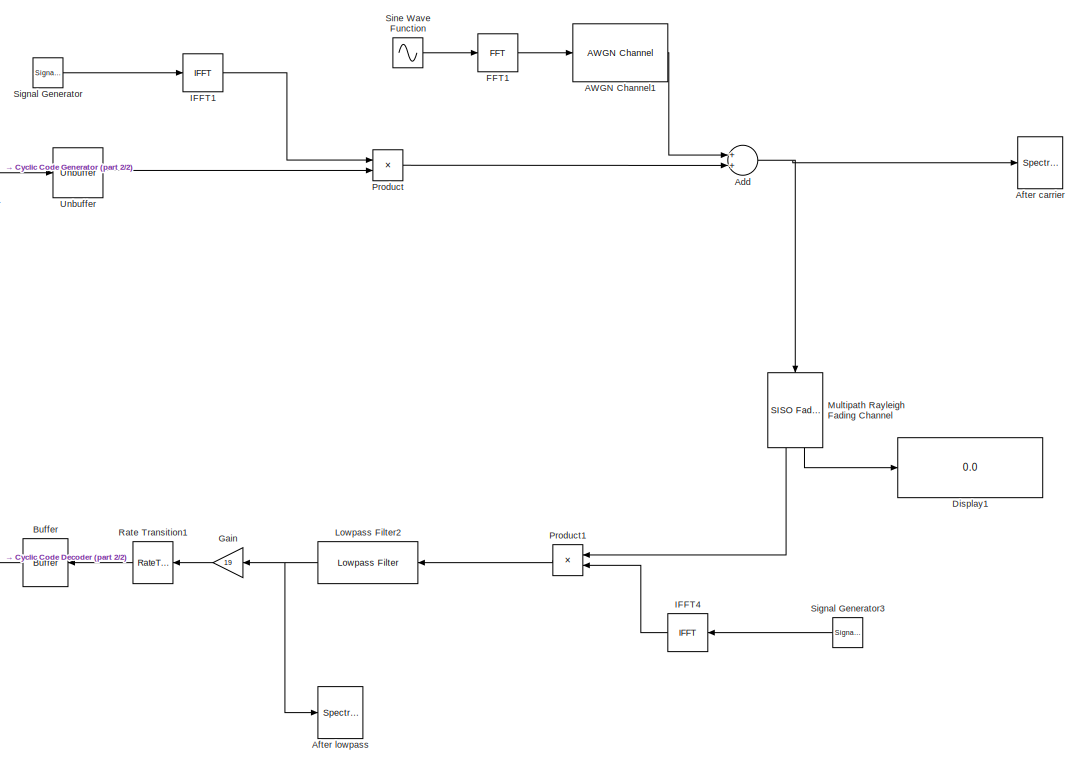
[diagram: root canvas - part 1/2, right side, full height]
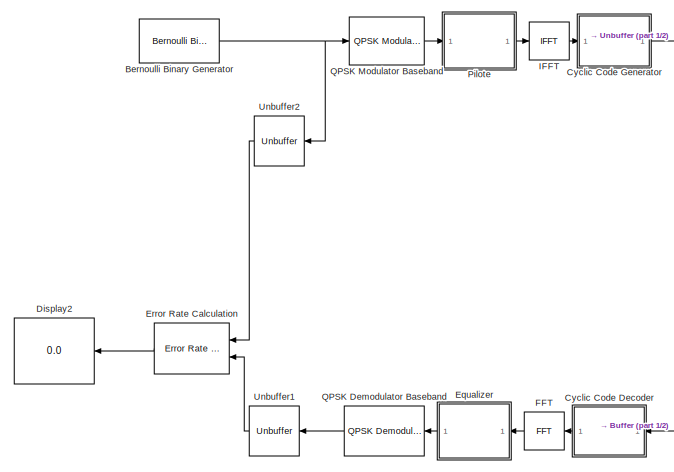
[diagram: root canvas - part 2/2, middle left region]
MODEL slx_56d662762907
KIND model
CONFIG AbsTol = auto
CONFIG EnableMultiTasking = off
CONFIG FixedStep = 3.1189083820662764e-10
CONFIG MaxStep = auto
CONFIG MinStep = auto
CONFIG RelTol = 1e-3
CONFIG SampleTimeConstraint = Unconstrained
CONFIG Solver = FixedStepDiscrete
CONFIG SolverName = FixedStepDiscrete
CONFIG StartTime = 0.0
CONFIG StopTime = inf
BLOCK [Reference] AWGN Channel1  REF=commchan3/AWGN
Channel
  Ports = [1, 1]
  SourceBlock = commchan3/AWGN\nChannel
  SourceProductBaseCode = CM
  SourceProductName = Communications System Toolbox
  SourceType = AWGN Channel
  UserDataPersistent = on
BLOCK [Sum] Add
  InputSameDT = off
  OutDataTypeStr = Inherit: Inherit via internal rule
  Ports = [2, 1]
  SaturateOnIntegerOverflow = off
BLOCK [SpectrumAnalyzer] After carrier 
  Ports = [1]
  ScopeSpecificationString = spbscopes.SpectrumAnalyzerBlockCfg('CurrentConfiguration', extmgr.ConfigurationSet(extmgr.Configuration('Core','General UI',true),extmgr.Configuration('Core','Source UI',true),extmgr.Configuration('Sources','WiredSimulink',true),extmgr.Configuration('Visuals','Spectrum',true,'AxesProperties',struct('Color',{[0 0 0],[0 0 0]},'XColor',{[0.686274509803922 0.686274509803922 0.686274509803922],[0.68627...<+2019ch>
BLOCK [SpectrumAnalyzer] After lowpass
  Ports = [1]
  ScopeSpecificationString = spbscopes.SpectrumAnalyzerBlockCfg('CurrentConfiguration', extmgr.ConfigurationSet(extmgr.Configuration('Core','General UI',true),extmgr.Configuration('Core','Source UI',true),extmgr.Configuration('Sources','WiredSimulink',true),extmgr.Configuration('Visuals','Spectrum',true,'AxesProperties',struct('Color',{[0 0 0],[0 0 0]},'XColor',{[0.686274509803922 0.686274509803922 0.686274509803922],[0.68627...<+2018ch>
BLOCK [Reference] Bernoulli Binary Generator  REF=commrandsrc3/Bernoulli Binary
Generator
  Ports = [0, 1]
  SourceBlock = commrandsrc3/Bernoulli Binary\nGenerator
  SourceProductBaseCode = CM
  SourceProductName = Communications Toolbox
  SourceType = Bernoulli Binary Generator
BLOCK [Buffer] Buffer
  N = N_total+N_cyclic
  OutputFrames = off
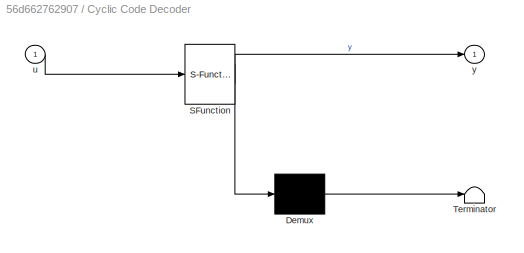
BLOCK [SubSystem] Cyclic Code Decoder
  ErrorFcn = Stateflow.Translate.translate
  PermitHierarchicalResolution = ExplicitOnly
  Ports = [1, 1]
  RequestExecContextInheritance = off
  SFBlockType = MATLAB Function
  TreatAsAtomicUnit = on
BLOCK [Demux] Cyclic Code Decoder/ Demux 
  Outputs = 1
  Ports = [1, 1]
BLOCK [S-Function] Cyclic Code Decoder/ SFunction 
  EnableBusSupport = on
  FunctionName = sf_sfun
  Parameters = N_cyclic
  PortCounts = [1 2]
  Ports = [1, 2]
  SFcnIsStateOwnerBlock = off
  SFunctionDeploymentMode = off
  Tag = Stateflow S-Function project 1
BLOCK [Terminator] Cyclic Code Decoder/ Terminator 
BLOCK [Inport] Cyclic Code Decoder/u
  IconDisplay = Port number
BLOCK [Outport] Cyclic Code Decoder/y
  IconDisplay = Port number
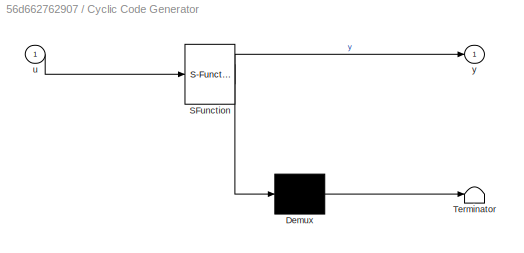
BLOCK [SubSystem] Cyclic Code Generator
  ErrorFcn = Stateflow.Translate.translate
  PermitHierarchicalResolution = ExplicitOnly
  Ports = [1, 1]
  RequestExecContextInheritance = off
  SFBlockType = MATLAB Function
  TreatAsAtomicUnit = on
BLOCK [Demux] Cyclic Code Generator/ Demux 
  Outputs = 1
  Ports = [1, 1]
BLOCK [S-Function] Cyclic Code Generator/ SFunction 
  EnableBusSupport = on
  FunctionName = sf_sfun
  Parameters = N_cyclic,N_total
  PortCounts = [1 2]
  Ports = [1, 2]
  SFcnIsStateOwnerBlock = off
  SFunctionDeploymentMode = off
  Tag = Stateflow S-Function project 3
BLOCK [Terminator] Cyclic Code Generator/ Terminator 
BLOCK [Inport] Cyclic Code Generator/u
  IconDisplay = Port number
BLOCK [Outport] Cyclic Code Generator/y
  IconDisplay = Port number
BLOCK [Display] Display1
  Decimation = 1
  Ports = [1]
BLOCK [Display] Display2
  Decimation = 1
  Ports = [1]
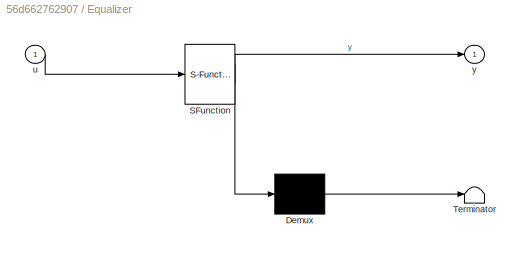
BLOCK [SubSystem] Equalizer
  ErrorFcn = Stateflow.Translate.translate
  PermitHierarchicalResolution = ExplicitOnly
  Ports = [1, 1]
  RequestExecContextInheritance = off
  SFBlockType = MATLAB Function
  TreatAsAtomicUnit = on
BLOCK [Demux] Equalizer/ Demux 
  Outputs = 1
  Ports = [1, 1]
BLOCK [S-Function] Equalizer/ SFunction 
  EnableBusSupport = on
  FunctionName = sf_sfun
  Parameters = N,N_total,espacement_pilote
  PortCounts = [1 2]
  Ports = [1, 2]
  SFcnIsStateOwnerBlock = off
  SFunctionDeploymentMode = off
  Tag = Stateflow S-Function project 4
BLOCK [Terminator] Equalizer/ Terminator 
BLOCK [Inport] Equalizer/u
  IconDisplay = Port number
BLOCK [Outport] Equalizer/y
  IconDisplay = Port number
BLOCK [Reference] Error Rate Calculation  REF=commsink2/Error Rate
Calculation
  Ports = [2, 1]
  SourceBlock = commsink2/Error Rate\nCalculation
  SourceProductBaseCode = CM
  SourceProductName = Communications Toolbox
  SourceType = Error Rate Calculation
BLOCK [Reference] FFT  REF=dspxfrm3/FFT
  Ports = [1, 1]
  SourceBlock = dspxfrm3/FFT
  SourceProductBaseCode = DS
  SourceProductName = DSP System Toolbox
  SourceType = FFT
BLOCK [Reference] FFT1  REF=dspxfrm3/FFT
  Ports = [1, 1]
  SourceBlock = dspxfrm3/FFT
  SourceProductBaseCode = DS
  SourceProductName = DSP System Toolbox
  SourceType = FFT
BLOCK [Gain] Gain
  Gain = 19
  OutDataTypeStr = Inherit: Inherit via internal rule
  ParamDataTypeStr = Inherit: Inherit via internal rule
  SaturateOnIntegerOverflow = off
BLOCK [Reference] IFFT  REF=dspxfrm3/IFFT
  Ports = [1, 1]
  SourceBlock = dspxfrm3/IFFT
  SourceProductBaseCode = DS
  SourceProductName = DSP System Toolbox
  SourceType = IFFT
BLOCK [Reference] IFFT1  REF=dspxfrm3/IFFT
  Ports = [1, 1]
  SourceBlock = dspxfrm3/IFFT
  SourceProductBaseCode = DS
  SourceProductName = DSP System Toolbox
  SourceType = IFFT
BLOCK [Reference] IFFT4  REF=dspxfrm3/IFFT
  Ports = [1, 1]
  SourceBlock = dspxfrm3/IFFT
  SourceProductBaseCode = DS
  SourceProductName = DSP System Toolbox
  SourceType = IFFT
BLOCK [Reference] Lowpass Filter2  REF=dspfdesign/Lowpass Filter
  Ports = [1, 1]
  SourceBlock = dspfdesign/Lowpass Filter
  SourceProductBaseCode = DS
  SourceProductName = DSP System Toolbox
  SourceType = dsp.LowpassFilter
BLOCK [Reference] Multipath Rayleigh Fading Channel  REF=commchan3/SISO Fading Channel
  Ports = [1, 2]
  SourceBlock = commchan3/SISO Fading Channel
  SourceProductBaseCode = CM
  SourceProductName = Communications Toolbox
  SourceType = SISO Fading Channel
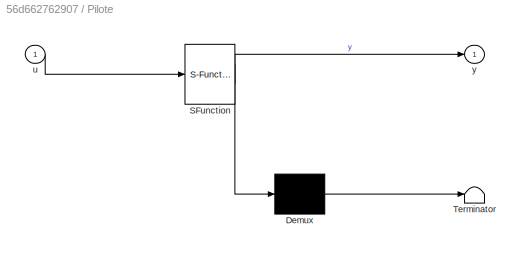
BLOCK [SubSystem] Pilote
  ErrorFcn = Stateflow.Translate.translate
  PermitHierarchicalResolution = ExplicitOnly
  Ports = [1, 1]
  RequestExecContextInheritance = off
  SFBlockType = MATLAB Function
  TreatAsAtomicUnit = on
BLOCK [Demux] Pilote/ Demux 
  Outputs = 1
  Ports = [1, 1]
BLOCK [S-Function] Pilote/ SFunction 
  EnableBusSupport = on
  FunctionName = sf_sfun
  Parameters = N,N_total,espacement_pilote
  PortCounts = [1 2]
  Ports = [1, 2]
  SFcnIsStateOwnerBlock = off
  SFunctionDeploymentMode = off
  Tag = Stateflow S-Function project 2
BLOCK [Terminator] Pilote/ Terminator 
BLOCK [Inport] Pilote/u
  IconDisplay = Port number
BLOCK [Outport] Pilote/y
  IconDisplay = Port number
BLOCK [Product] Product
  InputSameDT = off
  OutDataTypeStr = Inherit: Inherit via internal rule
  Ports = [2, 1]
  RndMeth = Floor
  SaturateOnIntegerOverflow = off
BLOCK [Product] Product1
  InputSameDT = off
  OutDataTypeStr = Inherit: Inherit via internal rule
  Ports = [2, 1]
  RndMeth = Floor
  SaturateOnIntegerOverflow = off
BLOCK [Reference] QPSK Demodulator Baseband  REF=commdigbbndpm3/QPSK
Demodulator
Baseband
  Ports = [1, 1]
  SourceBlock = commdigbbndpm3/QPSK\nDemodulator\nBaseband
  SourceProductBaseCode = CM
  SourceProductName = Communications Toolbox
  SourceType = QPSK Demodulator Baseband
BLOCK [Reference] QPSK Modulator Baseband  REF=commdigbbndpm3/QPSK
Modulator
Baseband
  Ports = [1, 1]
  SourceBlock = commdigbbndpm3/QPSK\nModulator\nBaseband
  SourceProductBaseCode = CM
  SourceProductName = Communications Toolbox
  SourceType = QPSK Modulator Baseband
BLOCK [RateTransition] Rate Transition1
BLOCK [SignalGenerator] Signal Generator
  Amplitude = 0.325
  Frequency = 868e6
  Ports = [0, 1]
BLOCK [SignalGenerator] Signal Generator3
  Amplitude = 0.325
  Frequency = 868e6
  Ports = [0, 1]
BLOCK [Sin] Sine Wave Function
  Amplitude = 4e4
  Frequency = 314.159265
  Ports = [0, 1]
  SampleTime = 0
BLOCK [Unbuffer] Unbuffer
  Ports = [1, 1]
BLOCK [Unbuffer] Unbuffer1
  Ports = [1, 1]
BLOCK [Unbuffer] Unbuffer2
  Ports = [1, 1]
LINE AWGN Channel1:1 -> Add:1
NET Add:1 -> After carrier :1, Multipath Rayleigh Fading Channel:1
NET Bernoulli Binary Generator:1 -> QPSK Modulator Baseband:1, Unbuffer2:1
LINE Buffer:1 -> Cyclic Code Decoder:1
LINE Cyclic Code Decoder:1 -> FFT:1
LINE Cyclic Code Generator:1 -> Unbuffer:1
LINE Equalizer:1 -> QPSK Demodulator Baseband:1
LINE Error Rate Calculation:1 -> Display2:1
LINE FFT1:1 -> AWGN Channel1:1
LINE FFT:1 -> Equalizer:1
LINE Gain:1 -> Rate Transition1:1
LINE IFFT1:1 -> Product:1
LINE IFFT4:1 -> Product1:2
LINE IFFT:1 -> Cyclic Code Generator:1
NET Lowpass Filter2:1 -> After lowpass:1, Gain:1
LINE Multipath Rayleigh Fading Channel:1 -> Product1:1
LINE Multipath Rayleigh Fading Channel:2 -> Display1:1
LINE Pilote:1 -> IFFT:1
LINE Product1:1 -> Lowpass Filter2:1
LINE Product:1 -> Add:2
LINE QPSK Demodulator Baseband:1 -> Unbuffer1:1
LINE QPSK Modulator Baseband:1 -> Pilote:1
LINE Rate Transition1:1 -> Buffer:1
LINE Signal Generator3:1 -> IFFT4:1
LINE Signal Generator:1 -> IFFT1:1
LINE Sine Wave Function:1 -> FFT1:1
LINE Unbuffer1:1 -> Error Rate Calculation:2
LINE Unbuffer2:1 -> Error Rate Calculation:1
LINE Unbuffer:1 -> Product:2
note: NET lines group one-source signal fan-out (src -> all destinations, sorted); 1:1 wires keep LINE
CHART Cyclic Code Decoder states=1 transitions=1
  STATE_LABEL 'eML_blk_kernel()'
  STATE_LABEL 'SCRIPT:\nfunction y = fcn(u, N_cyclic)\n\ny = u(N_cyclic+1:end);'
CHART Pilote states=1 transitions=1
  STATE_LABEL 'eML_blk_kernel()'
  STATE_LABEL 'SCRIPT:\nfunction y  = fcn(u, N, N_total, espacement_pilote)\n\nN_pilote = floor(N/espacement_pilote);\nN_zeros = N_total-N-N_pilote;\n\nw = complex(zeros(floor(N+N/espacement_pilote),1), zeros(floor(N+N/espacement_pilote),1));\n\n% Insertion des pilotes\n\ncompteur = 0;\nfor i = [1:N]\n    if mod(i,espacement_pilote) == espacement_pilote/2+1\n        if compteur < N_pilote    \n            w(i+compteur) = comp...<+308ch>'
CHART Cyclic Code Generator states=1 transitions=1
  STATE_LABEL 'eML_blk_kernel()'
  STATE_LABEL 'SCRIPT:\nfunction y = fcn(u, N_cyclic, N_total)\n\nu_end = u(N_total-N_cyclic+1:end);\n\ny = [u_end; u];'
CHART Equalizer states=1 transitions=1
  STATE_LABEL 'eML_blk_kernel()'
  STATE_LABEL 'SCRIPT:\nfunction y = fcn(u, N, N_total, espacement_pilote)\n\nN_pilote = floor(N/espacement_pilote);\nN_zeros = N_total-N-N_pilote;\n\ngain = complex(zeros(N_pilote,1), zeros(N_pilote,1));\ngain_plot = complex(zeros(N_pilote+N,1), zeros(N_pilote+N,1));\n\n\n% On enlève les zeros\n\nw = [u(1:floor((N_total-N_zeros)/2)); u(floor((N_total-N_zeros)/2+N_zeros+1):end)];\n\n% On initialise les valeurs des gains pour ...<+1036ch>'
